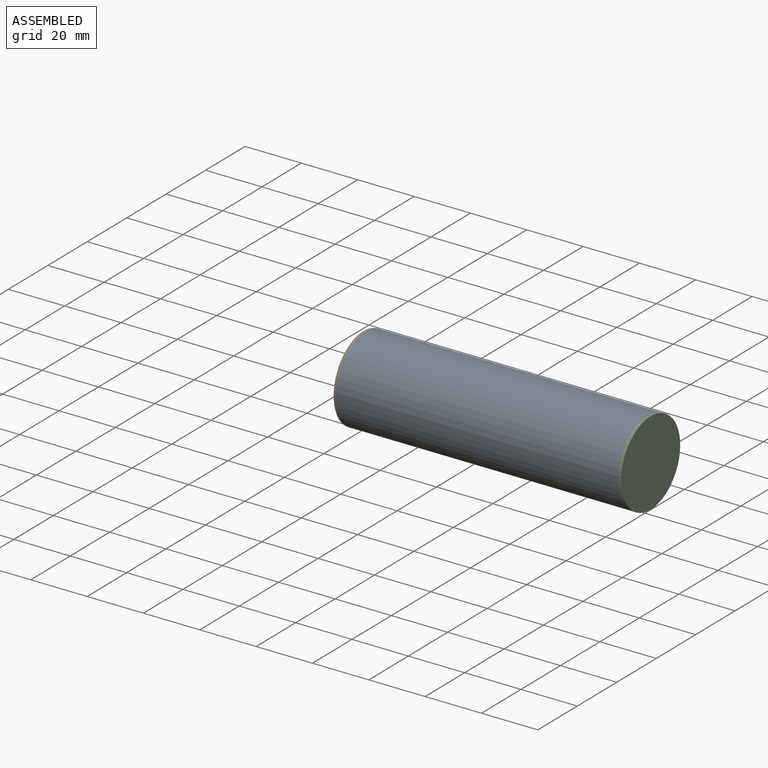
[diagram: assembled view]
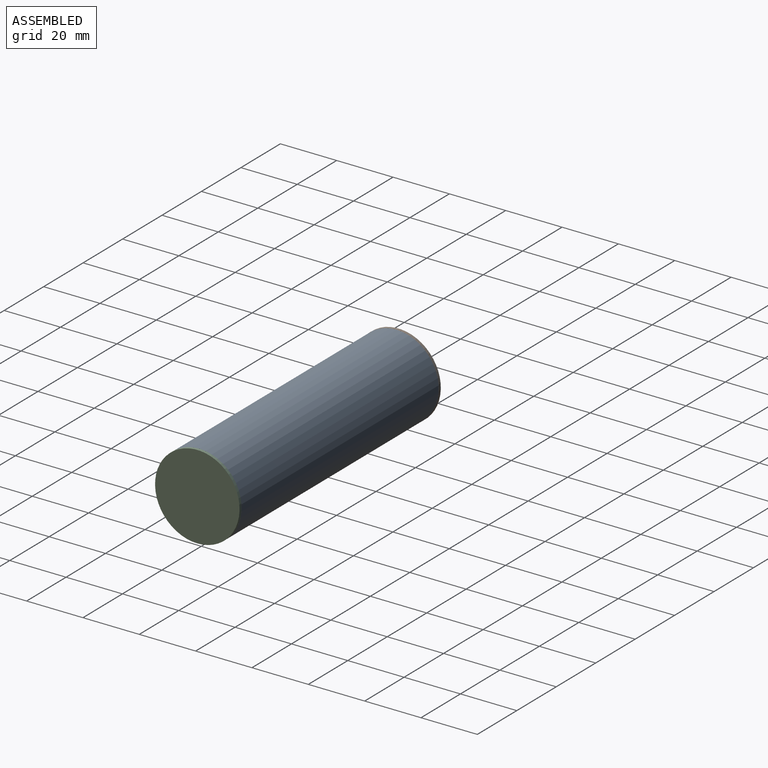
[diagram: assembled view, second angle]
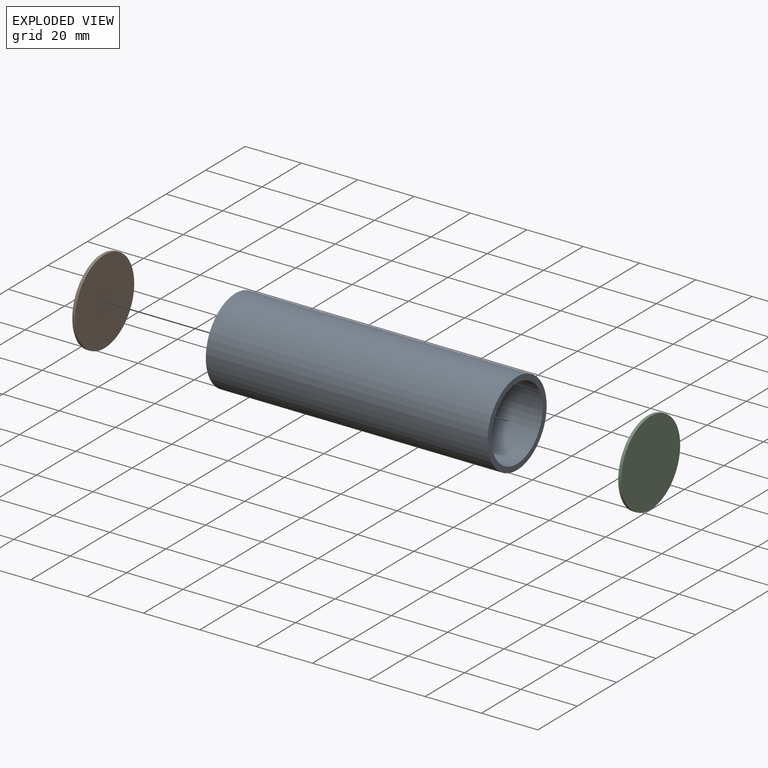
[diagram: exploded view]
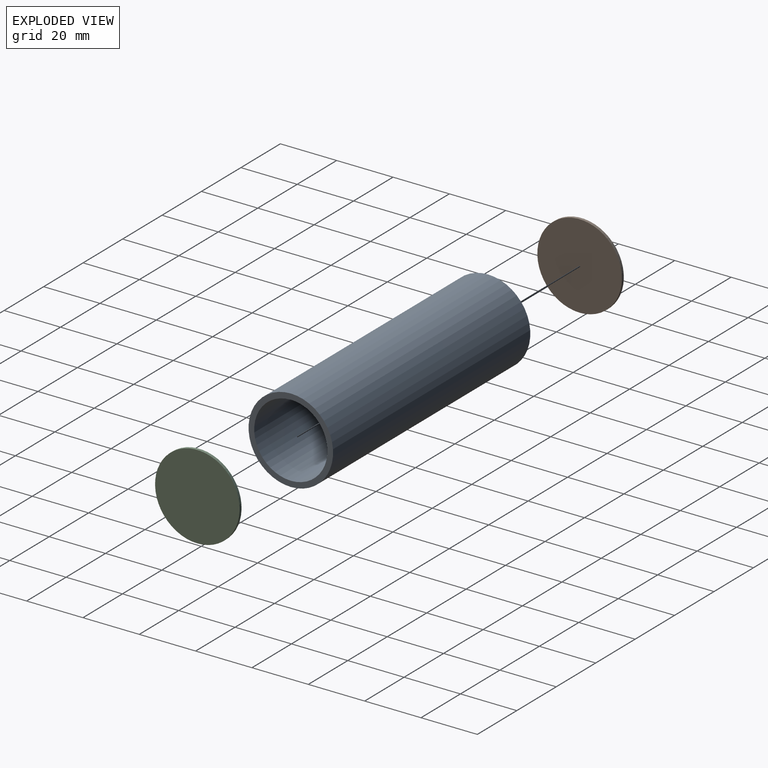
[diagram: exploded view, second angle]
ASSEMBLY  parts=3 mates=2
PART A: 8 faces, bbox 100x30x30 mm
  f0: cylinder r=13mm len=50mm, axis (-1,0,0), area 4084.1mm2, adj f4,f6
  f1: cylinder r=13mm len=49mm, axis (-1,0,0), area 4002.4mm2, adj f3,f5
  f2: cylinder r=15mm len=100mm, axis (-1,0,0), area 9424.8mm2, adj f3,f4
  f3: plane 30x30mm, normal (1,0,0), area 175.9mm2, adj f1,f2
  f4: plane 30x30mm, normal (-1,0,0), area 175.9mm2, adj f0,f2
  f5: plane 26x26mm, normal (1,0,0), area 452.4mm2, adj f1,f7
  f6: plane 26x26mm, normal (-1,0,0), area 452.4mm2, adj f0,f7
  f7: cylinder r=5mm len=10mm, axis (-1,0,0), area 31.4mm2, adj f5,f6
PART B: 3 faces, bbox 30x30x1 mm
  f0: cylinder r=15mm len=30mm, axis (0,0,-1), area 94.2mm2, adj f1,f2
  f1: plane 30x30mm, normal (0,0,1), area 706.9mm2, adj f0
  f2: plane 30x30mm, normal (0,0,-1), area 706.9mm2, adj f0
PART C: same geometry as B
PLACE A t=(1,0,0)mm
PLACE B rot(axis=(0,1,0),90deg) t=(0,0,0)mm
PLACE C rot(axis=(0.71,0,-0.71),180deg) t=(102,0,0)mm
MATE fastened A.f2 <-> B.f0  axis (-1,0,0) through (1,0,0)mm
MATE fastened A.f2 <-> C.f0  axis (1,0,0) through (101,0,0)mm
